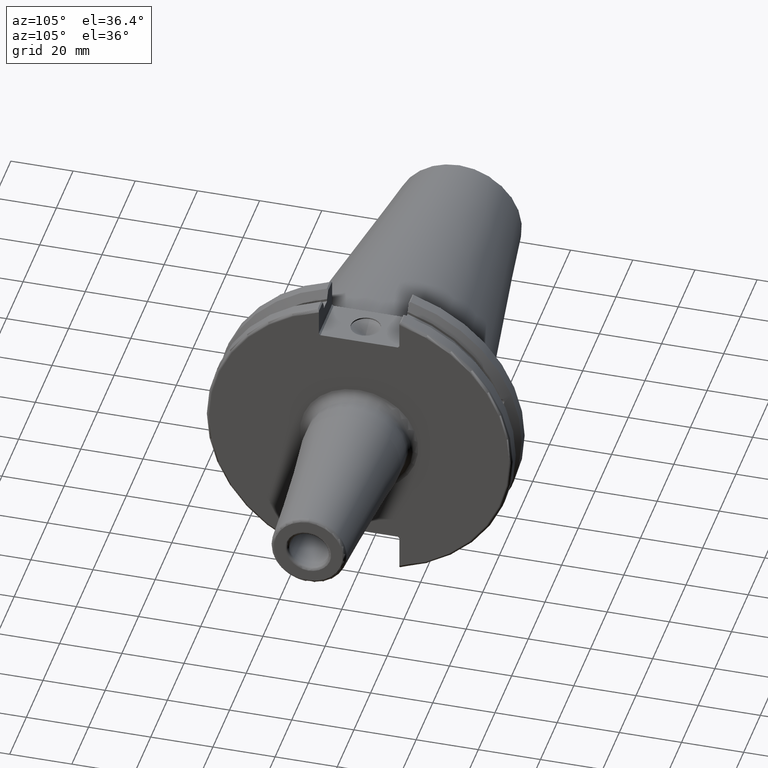
[diagram: clean part render]
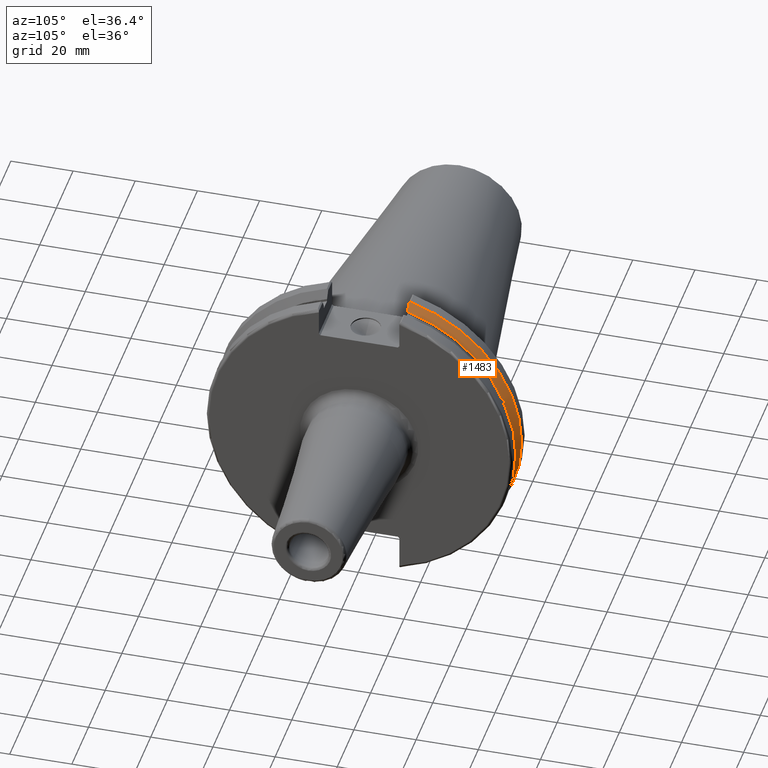
[diagram: same view with one face highlighted and labeled with its STEP entity id]
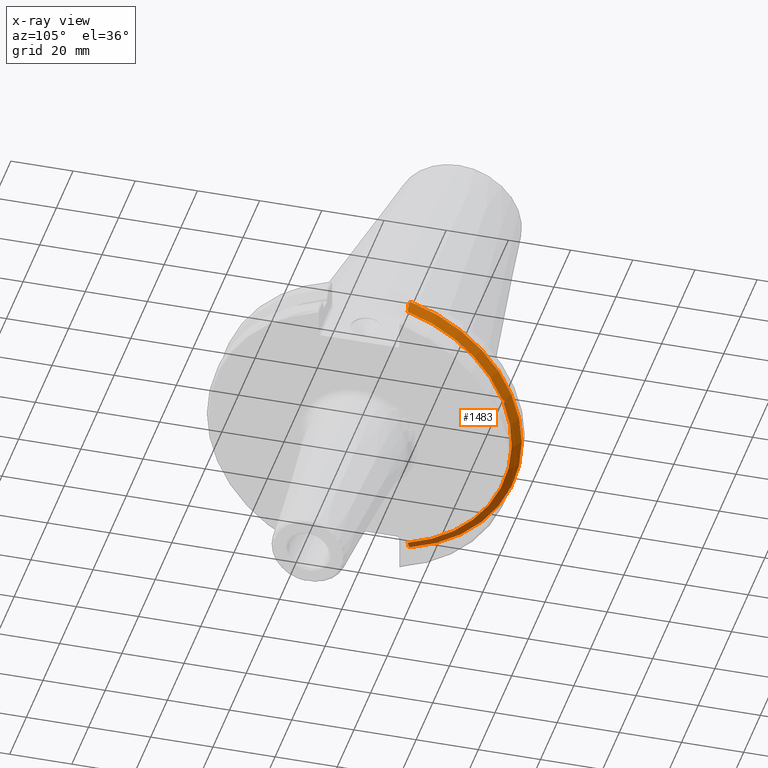
[diagram: x-ray of the same camera — body ghosted, the highlighted face saturated]
A machine part, auxiliary view. The second image highlights one B-rep face of the part: STEP entity #1483.
The next image is the same camera in x-ray: the body ghosted, the highlighted face saturated — about 0% of this face is hidden behind the body in this view.
In plain terms, the highlighted conical surface has half-angle 60 deg.
Its self-contained STEP definition (entity closure, byte-faithful):
#19=(
BOUNDED_CURVE()
B_SPLINE_CURVE(2,(#2719,#2720,#2721),.UNSPECIFIED.,.F.,.F.)
B_SPLINE_CURVE_WITH_KNOTS((3,3),(0.,0.275823910674652),.UNSPECIFIED.)
CURVE()
GEOMETRIC_REPRESENTATION_ITEM()
RATIONAL_B_SPLINE_CURVE((1.,1.00038235573731,1.00012873636533))
REPRESENTATION_ITEM('')
);
#20=(
BOUNDED_CURVE()
B_SPLINE_CURVE(2,(#2723,#2724,#2725),.UNSPECIFIED.,.F.,.F.)
B_SPLINE_CURVE_WITH_KNOTS((3,3),(0.,0.0648240472898323),.UNSPECIFIED.)
CURVE()
GEOMETRIC_REPRESENTATION_ITEM()
RATIONAL_B_SPLINE_CURVE((1.,1.00011477674853,1.00019140645976))
REPRESENTATION_ITEM('')
);
#21=(
BOUNDED_CURVE()
B_SPLINE_CURVE(2,(#2729,#2730,#2731),.UNSPECIFIED.,.F.,.F.)
B_SPLINE_CURVE_WITH_KNOTS((3,3),(0.325260944932483,0.390084992222205),
 .UNSPECIFIED.)
CURVE()
GEOMETRIC_REPRESENTATION_ITEM()
RATIONAL_B_SPLINE_CURVE((1.00019140645955,1.00011477674841,1.))
REPRESENTATION_ITEM('')
);
#22=(
BOUNDED_CURVE()
B_SPLINE_CURVE(2,(#2733,#2734,#2735),.UNSPECIFIED.,.F.,.F.)
B_SPLINE_CURVE_WITH_KNOTS((3,3),(0.0558332664491378,0.331657177124507),
 .UNSPECIFIED.)
CURVE()
GEOMETRIC_REPRESENTATION_ITEM()
RATIONAL_B_SPLINE_CURVE((1.00012873637135,1.00038235575519,1.))
REPRESENTATION_ITEM('')
);
#52=B_SPLINE_CURVE_WITH_KNOTS('',3,(#2672,#2673,#2674,#2675,#2676,#2677,
#2678,#2679,#2680,#2681,#2682,#2683,#2684,#2685),.UNSPECIFIED.,.F.,.F.,
(4,2,2,2,2,2,4),(0.426712868358718,0.441644498666905,0.480313313223129,
0.518982127779353,0.557650942335577,0.596319756891801,0.611251387199986),
 .UNSPECIFIED.);
#76=CONICAL_SURFACE('',#1631,47.8172386482472,1.0471975511966);
#384=FACE_OUTER_BOUND('',#481,.T.);
#481=EDGE_LOOP('',(#1161,#1162,#1163,#1164,#1165,#1166,#1167,#1168));
#582=CIRCLE('',#1632,46.4219772964944);
#583=CIRCLE('',#1633,49.2125);
#584=CIRCLE('',#1634,46.4219772964944);
#695=VERTEX_POINT('',#2669);
#696=VERTEX_POINT('',#2671);
#700=VERTEX_POINT('',#2716);
#701=VERTEX_POINT('',#2718);
#702=VERTEX_POINT('',#2722);
#703=VERTEX_POINT('',#2726);
#704=VERTEX_POINT('',#2728);
#705=VERTEX_POINT('',#2732);
#869=EDGE_CURVE('',#696,#695,#52,.T.);
#874=EDGE_CURVE('',#700,#695,#582,.T.);
#875=EDGE_CURVE('',#700,#701,#19,.T.);
#876=EDGE_CURVE('',#702,#701,#20,.T.);
#877=EDGE_CURVE('',#702,#703,#583,.T.);
#878=EDGE_CURVE('',#704,#703,#21,.T.);
#879=EDGE_CURVE('',#704,#705,#22,.T.);
#880=EDGE_CURVE('',#696,#705,#584,.T.);
#1161=ORIENTED_EDGE('',*,*,#869,.T.);
#1162=ORIENTED_EDGE('',*,*,#874,.F.);
#1163=ORIENTED_EDGE('',*,*,#875,.T.);
#1164=ORIENTED_EDGE('',*,*,#876,.F.);
#1165=ORIENTED_EDGE('',*,*,#877,.T.);
#1166=ORIENTED_EDGE('',*,*,#878,.F.);
#1167=ORIENTED_EDGE('',*,*,#879,.T.);
#1168=ORIENTED_EDGE('',*,*,#880,.F.);
#1483=ADVANCED_FACE('',(#384),#76,.T.);
#1631=AXIS2_PLACEMENT_3D('',#2715,#1907,#1908);
#1632=AXIS2_PLACEMENT_3D('',#2717,#1909,#1910);
#1633=AXIS2_PLACEMENT_3D('',#2727,#1911,#1912);
#1634=AXIS2_PLACEMENT_3D('',#2736,#1913,#1914);
#1907=DIRECTION('center_axis',(-1.,0.,0.));
#1908=DIRECTION('ref_axis',(0.,1.,0.));
#1909=DIRECTION('center_axis',(1.,0.,0.));
#1910=DIRECTION('ref_axis',(0.,0.,-1.));
#1911=DIRECTION('center_axis',(1.,0.,0.));
#1912=DIRECTION('ref_axis',(0.,0.,-1.));
#1913=DIRECTION('center_axis',(1.,0.,0.));
#1914=DIRECTION('ref_axis',(0.,0.,-1.));
#2669=CARTESIAN_POINT('',(9.2191,43.9096390749305,15.0646464421033));
#2671=CARTESIAN_POINT('',(9.2191,43.3201030900029,16.684383248648));
#2672=CARTESIAN_POINT('Ctrl Pts',(9.21910000000001,43.3201030900029,16.6843832486479));
#2673=CARTESIAN_POINT('Ctrl Pts',(9.20211843903392,43.3613106941341,16.6592273018006));
#2674=CARTESIAN_POINT('Ctrl Pts',(9.18608675403323,43.4012416983557,16.6326763251437));
#2675=CARTESIAN_POINT('Ctrl Pts',(9.13238673845037,43.539103734322,16.5325130832406));
#2676=CARTESIAN_POINT('Ctrl Pts',(9.09621610663555,43.6406982153491,16.441180795372));
#2677=CARTESIAN_POINT('Ctrl Pts',(9.04690868251975,43.8110833825827,16.2291323464527));
#2678=CARTESIAN_POINT('Ctrl Pts',(9.0341,43.8794096049168,16.10796730316));
#2679=CARTESIAN_POINT('Ctrl Pts',(9.0341,43.9675796948952,15.8657219718732));
#2680=CARTESIAN_POINT('Ctrl Pts',(9.04690868251975,43.9931221605126,15.7289849146254));
#2681=CARTESIAN_POINT('Ctrl Pts',(9.09621610663555,43.9989016655819,15.4570249042868));
#2682=CARTESIAN_POINT('Ctrl Pts',(9.13238673845037,43.9797830409458,15.3217566390708));
#2683=CARTESIAN_POINT('Ctrl Pts',(9.18608675403322,43.9385582852181,15.1564111356409));
#2684=CARTESIAN_POINT('Ctrl Pts',(9.20211843903391,43.9250360001461,15.1104047527575));
#2685=CARTESIAN_POINT('Ctrl Pts',(9.2191,43.9096390749305,15.0646464421033));
#2715=CARTESIAN_POINT('Origin',(8.41354548297563,0.,0.));
#2716=CARTESIAN_POINT('',(9.2191,12.95,-44.5791147973604));
#2717=CARTESIAN_POINT('Origin',(9.2191,0.,0.));
#2718=CARTESIAN_POINT('',(7.88638960562424,12.95,-46.9780755322918));
#2719=CARTESIAN_POINT('Ctrl Pts',(9.2191,12.95,-44.5791147973604));
#2720=CARTESIAN_POINT('Ctrl Pts',(8.57020449055827,12.95,-45.7494966802153));
#2721=CARTESIAN_POINT('Ctrl Pts',(7.88638960562424,12.95,-46.9780755322918));
#2722=CARTESIAN_POINT('',(7.60799096595127,13.4317035994433,-47.3440544806494));
#2723=CARTESIAN_POINT('Ctrl Pts',(7.60799096595127,13.4317035994433,-47.3440544806494));
#2724=CARTESIAN_POINT('Ctrl Pts',(7.74826896663818,13.1896660169966,-47.1601640966265));
#2725=CARTESIAN_POINT('Ctrl Pts',(7.88638960562424,12.95,-46.9780755322918));
#2726=CARTESIAN_POINT('',(7.60799096595127,13.4317035994433,47.3440544806494));
#2727=CARTESIAN_POINT('Origin',(7.60799096595127,0.,0.));
#2728=CARTESIAN_POINT('',(7.88638960562424,12.95,46.9780755322918));
#2729=CARTESIAN_POINT('Ctrl Pts',(7.88638960562424,12.95,46.9780755322917));
#2730=CARTESIAN_POINT('Ctrl Pts',(7.74826896663821,13.1896660169966,47.1601640966264));
#2731=CARTESIAN_POINT('Ctrl Pts',(7.60799096595127,13.4317035994433,47.3440544806494));
#2732=CARTESIAN_POINT('',(9.2191,12.95,44.5791147973604));
#2733=CARTESIAN_POINT('Ctrl Pts',(7.88638960562424,12.95,46.9780755322918));
#2734=CARTESIAN_POINT('Ctrl Pts',(8.57020449055492,12.95,45.7494966802213));
#2735=CARTESIAN_POINT('Ctrl Pts',(9.2191,12.95,44.5791147973604));
#2736=CARTESIAN_POINT('Origin',(9.2191,0.,0.));